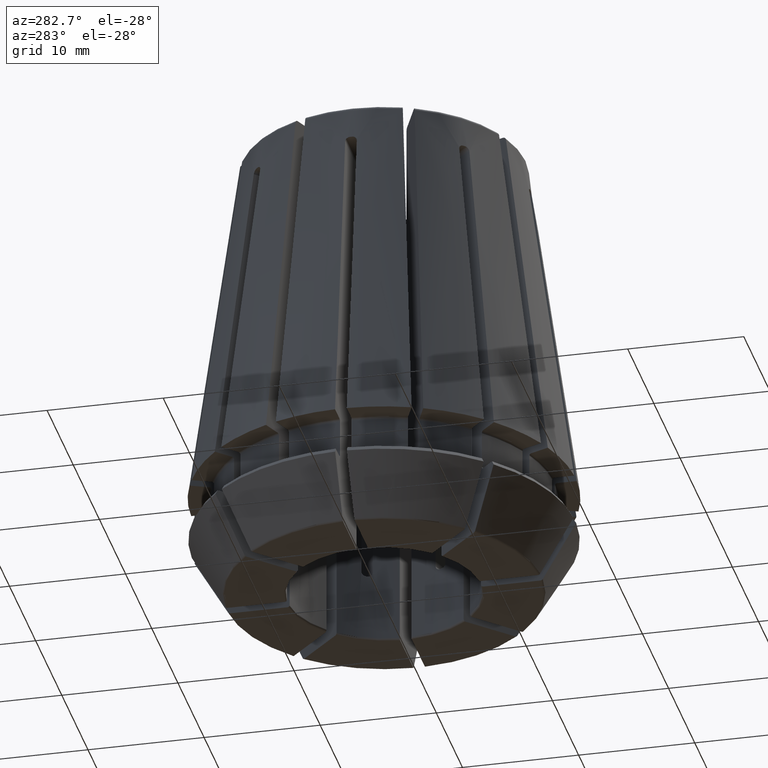
[diagram: clean part render]
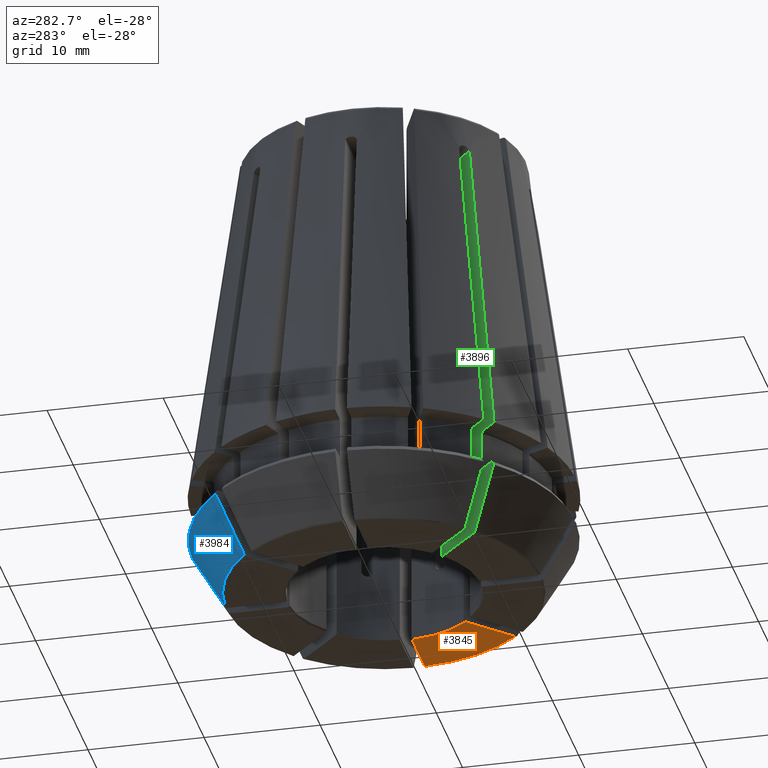
[diagram: same view with three faces highlighted in distinct colors, each labeled with its STEP entity id]
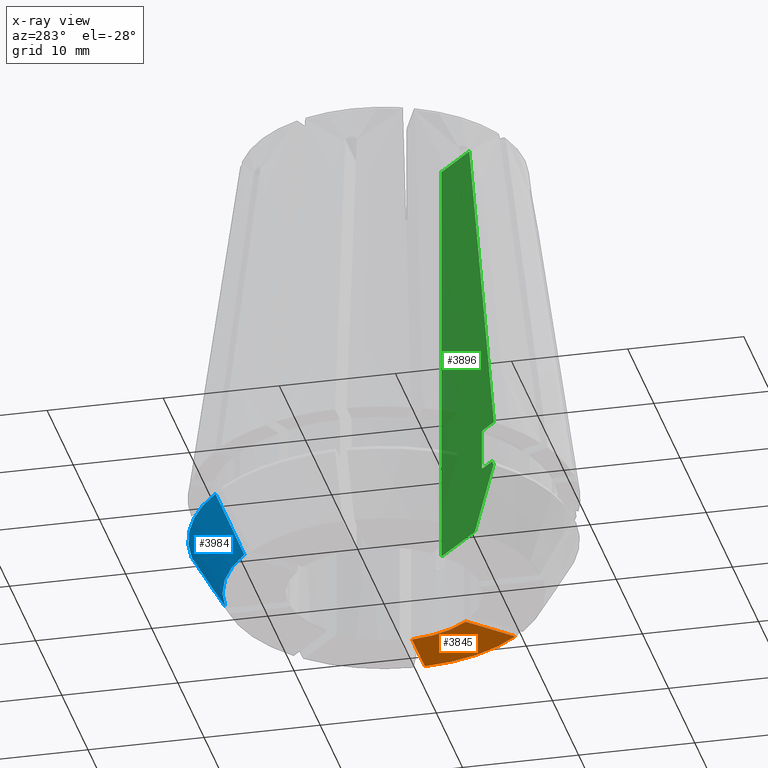
[diagram: x-ray of the same camera — body ghosted, the three highlighted faces saturated]
A machine part, auxiliary view with three faces highlighted in distinct colors.
The next image is the same camera in x-ray (body ghosted, the three faces saturated) — at least one of them is partly hidden behind the body in this view.
Their STEP definitions:

[orange] entity #3845 — the highlighted planar face has unit normal (0, 0, -1).
#149=LINE('',#6143,#373);
#150=LINE('',#6147,#374);
#373=VECTOR('',#4790,1000.);
#374=VECTOR('',#4793,1000.);
#551=PLANE('',#4163);
#717=CIRCLE('',#4164,13.3552359521597);
#718=CIRCLE('',#4165,8.45);
#1089=ORIENTED_EDGE('',*,*,#2293,.F.);
#1090=ORIENTED_EDGE('',*,*,#2294,.T.);
#1091=ORIENTED_EDGE('',*,*,#2295,.F.);
#1092=ORIENTED_EDGE('',*,*,#2296,.F.);
#2293=EDGE_CURVE('',#2873,#2874,#717,.T.);
#2294=EDGE_CURVE('',#2873,#2875,#149,.T.);
#2295=EDGE_CURVE('',#2876,#2875,#718,.T.);
#2296=EDGE_CURVE('',#2874,#2876,#150,.T.);
#2873=VERTEX_POINT('',#6141);
#2874=VERTEX_POINT('',#6142);
#2875=VERTEX_POINT('',#6144);
#2876=VERTEX_POINT('',#6146);
#3369=EDGE_LOOP('',(#1089,#1090,#1091,#1092));
#3579=FACE_BOUND('',#3369,.T.);
#3845=ADVANCED_FACE('',(#3579),#551,.T.);
#4163=AXIS2_PLACEMENT_3D('',#6139,#4786,#4787);
#4164=AXIS2_PLACEMENT_3D('',#6140,#4788,#4789);
#4165=AXIS2_PLACEMENT_3D('',#6145,#4791,#4792);
#4786=DIRECTION('',(0.,0.,-1.));
#4787=DIRECTION('',(-1.,0.,0.));
#4788=DIRECTION('',(0.,0.,1.));
#4789=DIRECTION('',(1.,0.,0.));
#4790=DIRECTION('',(-0.707106781186548,0.707106781186548,0.));
#4791=DIRECTION('',(0.,0.,-1.));
#4792=DIRECTION('',(-1.,0.,0.));
#4793=DIRECTION('',(-1.,1.60812264967663E-16,0.));
#6139=CARTESIAN_POINT('',(0.,13.3552359521597,0.2));
#6140=CARTESIAN_POINT('',(0.,0.,0.200000000000006));
#6141=CARTESIAN_POINT('',(9.79051072168942,-9.08340394050287,0.200000000000003));
#6142=CARTESIAN_POINT('',(13.3458730451724,-0.500000000000002,0.200000000000003));
#6143=CARTESIAN_POINT('',(-6.32406458548656,7.03117136667311,0.2));
#6144=CARTESIAN_POINT('',(6.31813636008905,-5.6110295789025,0.200000000000003));
#6145=CARTESIAN_POINT('',(0.,0.,0.2));
#6146=CARTESIAN_POINT('',(8.43519412936063,-0.500000000000001,0.200000000000003));
#6147=CARTESIAN_POINT('',(-2.2280918751282E-15,-0.5,0.2));

[blue] entity #3984 — the highlighted conical surface has half-angle 30 deg.
#42=CONICAL_SURFACE('',#4398,16.4464101615138,0.523598775598298);
#766=CIRCLE('',#4242,16.4464101615138);
#773=CIRCLE('',#4253,60602.3603996183);
#793=CIRCLE('',#4299,60602.3608670768);
#811=CIRCLE('',#4377,13.5717423031058);
#1903=ORIENTED_EDGE('',*,*,#2530,.F.);
#1904=ORIENTED_EDGE('',*,*,#2404,.F.);
#1905=ORIENTED_EDGE('',*,*,#2422,.T.);
#1906=ORIENTED_EDGE('',*,*,#2656,.T.);
#2404=EDGE_CURVE('',#2964,#2963,#766,.T.);
#2422=EDGE_CURVE('',#2964,#2981,#773,.T.);
#2530=EDGE_CURVE('',#2963,#3055,#793,.T.);
#2656=EDGE_CURVE('',#2981,#3055,#811,.T.);
#2963=VERTEX_POINT('',#6441);
#2964=VERTEX_POINT('',#6443);
#2981=VERTEX_POINT('',#6509);
#3055=VERTEX_POINT('',#6823);
#3508=EDGE_LOOP('',(#1903,#1904,#1905,#1906));
#3718=FACE_BOUND('',#3508,.T.);
#3984=ADVANCED_FACE('',(#3718),#42,.T.);
#4242=AXIS2_PLACEMENT_3D('',#6444,#4982,#4983);
#4253=AXIS2_PLACEMENT_3D('',#6510,#5008,#5009);
#4299=AXIS2_PLACEMENT_3D('',#6822,#5164,#5165);
#4377=AXIS2_PLACEMENT_3D('',#7307,#5357,#5358);
#4398=AXIS2_PLACEMENT_3D('',#7376,#5413,#5414);
#4982=DIRECTION('',(0.,0.,1.));
#4983=DIRECTION('',(1.,0.,0.));
#5008=DIRECTION('',(-1.,0.,0.));
#5009=DIRECTION('',(0.,0.865927774042361,-0.50016906156023));
#5164=DIRECTION('',(-0.707106781192398,-0.707106781180697,-4.68038147526125E-12));
#5165=DIRECTION('',(-0.61230340103626,0.612303401049702,-0.500169061560585));
#5357=DIRECTION('',(0.,0.,1.));
#5358=DIRECTION('',(1.,0.,0.));
#5413=DIRECTION('',(0.,0.,1.));
#5414=DIRECTION('',(1.,0.,0.));
#6441=CARTESIAN_POINT('',(-11.2704391937287,11.9775459749152,5.30407078564789));
#6443=CARTESIAN_POINT('',(-0.5,16.4388079616724,5.30407078564789));
#6444=CARTESIAN_POINT('',(0.,0.,5.30407078564789));
#6509=CARTESIAN_POINT('',(-0.5,13.5625288623439,0.325000000000002));
#6510=CARTESIAN_POINT('',(-0.5,-52460.8282345928,30316.7298001976));
#6822=CARTESIAN_POINT('',(37095.7612305442,-37095.0541245776,30316.7300340274));
#6823=CARTESIAN_POINT('',(-9.23660273800838,9.94370951919492,0.324999999999999));
#7307=CARTESIAN_POINT('',(0.,0.,0.325000000000006));
#7376=CARTESIAN_POINT('',(0.,0.,5.30407078564789));

[green] entity #3896 — the highlighted planar face has unit normal (-0.7071, 0.7071, 0).
#115=LINE('',#5843,#339);
#117=LINE('',#5849,#341);
#119=LINE('',#5870,#343);
#123=LINE('',#5894,#347);
#125=LINE('',#5900,#349);
#233=LINE('',#6728,#457);
#234=LINE('',#6730,#458);
#339=VECTOR('',#4616,1000.);
#341=VECTOR('',#4622,1000.);
#343=VECTOR('',#4634,1000.);
#347=VECTOR('',#4646,1000.);
#349=VECTOR('',#4652,1000.);
#457=VECTOR('',#5114,1000.);
#458=VECTOR('',#5115,1000.);
#581=PLANE('',#4284);
#684=CIRCLE('',#4110,60602.3608414495);
#1370=ORIENTED_EDGE('',*,*,#2495,.T.);
#1371=ORIENTED_EDGE('',*,*,#2496,.T.);
#1372=ORIENTED_EDGE('',*,*,#2497,.F.);
#1373=ORIENTED_EDGE('',*,*,#2498,.F.);
#1374=ORIENTED_EDGE('',*,*,#2208,.F.);
#1375=ORIENTED_EDGE('',*,*,#2217,.F.);
#1376=ORIENTED_EDGE('',*,*,#2214,.F.);
#1377=ORIENTED_EDGE('',*,*,#2211,.F.);
#1378=ORIENTED_EDGE('',*,*,#2192,.T.);
#1379=ORIENTED_EDGE('',*,*,#2196,.T.);
#1380=ORIENTED_EDGE('',*,*,#2199,.T.);
#1381=ORIENTED_EDGE('',*,*,#2185,.T.);
#1382=ORIENTED_EDGE('',*,*,#2189,.T.);
#2185=EDGE_CURVE('',#2787,#2788,#3143,.T.);
#2189=EDGE_CURVE('',#2788,#2791,#115,.T.);
#2192=EDGE_CURVE('',#2793,#2794,#117,.T.);
#2196=EDGE_CURVE('',#2794,#2797,#3145,.T.);
#2199=EDGE_CURVE('',#2797,#2787,#119,.T.);
#2208=EDGE_CURVE('',#2805,#2807,#123,.T.);
#2211=EDGE_CURVE('',#2793,#2809,#125,.T.);
#2214=EDGE_CURVE('',#2809,#2811,#684,.T.);
#2217=EDGE_CURVE('',#2811,#2805,#3149,.T.);
#2495=EDGE_CURVE('',#2791,#3029,#3221,.T.);
#2496=EDGE_CURVE('',#3029,#3030,#233,.T.);
#2497=EDGE_CURVE('',#3031,#3030,#234,.T.);
#2498=EDGE_CURVE('',#2807,#3031,#3222,.T.);
#2787=VERTEX_POINT('',#5832);
#2788=VERTEX_POINT('',#5833);
#2791=VERTEX_POINT('',#5844);
#2793=VERTEX_POINT('',#5850);
#2794=VERTEX_POINT('',#5851);
#2797=VERTEX_POINT('',#5862);
#2805=VERTEX_POINT('',#5892);
#2807=VERTEX_POINT('',#5895);
#2809=VERTEX_POINT('',#5901);
#2811=VERTEX_POINT('',#5907);
#3029=VERTEX_POINT('',#6727);
#3030=VERTEX_POINT('',#6729);
#3031=VERTEX_POINT('',#6731);
#3143=B_SPLINE_CURVE_WITH_KNOTS('',3,(#5828,#5829,#5830,#5831),
 .UNSPECIFIED.,.F.,.F.,(4,4),(0.,0.000312522060362306),.UNSPECIFIED.);
#3145=B_SPLINE_CURVE_WITH_KNOTS('',3,(#5858,#5859,#5860,#5861),
 .UNSPECIFIED.,.F.,.F.,(4,4),(7.56148432677051E-18,0.00031252218647989),
 .UNSPECIFIED.);
#3149=B_SPLINE_CURVE_WITH_KNOTS('',3,(#5912,#5913,#5914,#5915),
 .UNSPECIFIED.,.F.,.F.,(4,4),(5.30785325229634E-16,0.000260881061691445),
 .UNSPECIFIED.);
#3221=B_SPLINE_CURVE_WITH_KNOTS('',3,(#6723,#6724,#6725,#6726),
 .UNSPECIFIED.,.F.,.F.,(4,4),(2.01967312199597E-7,0.0277707831092404),
 .UNSPECIFIED.);
#3222=B_SPLINE_CURVE_WITH_KNOTS('',3,(#6732,#6733,#6734,#6735),
 .UNSPECIFIED.,.F.,.F.,(4,4),(1.1820278000622E-16,0.000312711929800136),
 .UNSPECIFIED.);
#3420=EDGE_LOOP('',(#1370,#1371,#1372,#1373,#1374,#1375,#1376,#1377,#1378,
#1379,#1380,#1381,#1382));
#3630=FACE_BOUND('',#3420,.T.);
#3896=ADVANCED_FACE('',(#3630),#581,.T.);
#4110=AXIS2_PLACEMENT_3D('',#5906,#4658,#4659);
#4284=AXIS2_PLACEMENT_3D('',#6722,#5112,#5113);
#4616=DIRECTION('',(-0.707106781186547,-0.707106781186548,-1.59408975653915E-18));
#4622=DIRECTION('',(0.707106781186547,0.707106781186548,1.59408975653915E-18));
#4634=DIRECTION('',(-2.25438335333768E-18,0.,1.));
#4646=DIRECTION('',(0.707106781186547,0.707106781186548,0.));
#4652=DIRECTION('',(-0.353677725120654,-0.353677725120437,-0.865923861264437));
#4658=DIRECTION('',(0.707106781382538,-0.707106780990557,1.60303065595208E-10));
#4659=DIRECTION('',(-0.612303400816581,-0.612303401269398,-0.500169061560565));
#5112=DIRECTION('',(-0.707106781186548,0.707106781186547,0.));
#5113=DIRECTION('',(0.707106781186547,0.707106781186548,0.));
#5114=DIRECTION('',(0.707106781186547,0.707106781186548,0.));
#5115=DIRECTION('',(0.,0.,1.));
#5828=CARTESIAN_POINT('',(-9.96414984220034,-10.6712566233869,9.1));
#5829=CARTESIAN_POINT('',(-9.96414984220034,-10.6712566233869,9.20567426849908));
#5830=CARTESIAN_POINT('',(-10.0309313061142,-10.7380380873007,9.30000000000101));
#5831=CARTESIAN_POINT('',(-10.105653080263,-10.8127598614495,9.30000000000097));
#5832=CARTESIAN_POINT('',(-9.96414984220035,-10.6712566233869,9.1));
#5833=CARTESIAN_POINT('',(-10.105653080263,-10.8127598614496,9.3));
#5843=CARTESIAN_POINT('',(7.75355339059327,7.04644660940673,9.3));
#5844=CARTESIAN_POINT('',(-11.3083503990973,-12.0154571802839,9.3));
#5849=CARTESIAN_POINT('',(8.63808333675534,7.9309765555688,5.7));
#5850=CARTESIAN_POINT('',(-11.1087259645351,-11.8158327457217,5.7));
#5851=CARTESIAN_POINT('',(-10.1056530802629,-10.8127598614495,5.7));
#5858=CARTESIAN_POINT('',(-10.1056530802629,-10.8127598614495,5.7));
#5859=CARTESIAN_POINT('',(-10.0309305503009,-10.7380373314875,5.69999999999999));
#5860=CARTESIAN_POINT('',(-9.96414984219977,-10.6712566233863,5.79432466738721));
#5861=CARTESIAN_POINT('',(-9.9641498421997,-10.6712566233863,5.8999999999998));
#5862=CARTESIAN_POINT('',(-9.96414984220035,-10.6712566233869,5.9));
#5870=CARTESIAN_POINT('',(-9.96414984220035,-10.6712566233869,34.));
#5892=CARTESIAN_POINT('',(-9.08340394050287,-9.79051072168943,0.200000000000003));
#5894=CARTESIAN_POINT('',(7.03117136667311,6.32406458548657,0.2));
#5895=CARTESIAN_POINT('',(-5.61102957890249,-6.31813636008905,0.2));
#5900=CARTESIAN_POINT('',(-11.1895825791319,-11.8966893603185,5.50203539282395));
#5901=CARTESIAN_POINT('',(-11.2704391937287,-11.9775459749152,5.30407078564789));
#5906=CARTESIAN_POINT('',(37095.7612015394,37095.0541222,30316.7300212082));
#5907=CARTESIAN_POINT('',(-9.23660273801106,-9.94370951919329,0.325000000000068));
#5912=CARTESIAN_POINT('',(-9.23660273800837,-9.94370951919493,0.324999999999991));
#5913=CARTESIAN_POINT('',(-9.20539879380627,-9.91250557499282,0.248618147271801));
#5914=CARTESIAN_POINT('',(-9.14577906481972,-9.85288584600628,0.199999999999988));
#5915=CARTESIAN_POINT('',(-9.08340394050286,-9.79051072168941,0.2));
#6722=CARTESIAN_POINT('',(0.353553390593271,-0.353553390593273,-36.7376156317235));
#6723=CARTESIAN_POINT('',(-11.3083503990973,-12.0154571802839,9.3));
#6724=CARTESIAN_POINT('',(-10.3969700797826,-11.1040768609691,18.4666916569642));
#6725=CARTESIAN_POINT('',(-9.48550258403434,-10.1926093652209,27.6333659833111));
#6726=CARTESIAN_POINT('',(-8.5738324378724,-9.28093921905896,36.8));
#6727=CARTESIAN_POINT('',(-8.57383243787239,-9.28093921905895,36.8));
#6728=CARTESIAN_POINT('',(-5.46935395883279,-6.17646074001934,36.8));
#6729=CARTESIAN_POINT('',(-5.46935395883279,-6.17646074001934,36.8));
#6730=CARTESIAN_POINT('',(-5.46935395883279,-6.17646074001934,-57.));
#6731=CARTESIAN_POINT('',(-5.46935395883248,-6.17646074001903,0.399999999999909));
#6732=CARTESIAN_POINT('',(-5.61102957890241,-6.31813636008896,0.200000000000005));
#6733=CARTESIAN_POINT('',(-5.53626214206021,-6.24336892324677,0.200000000000131));
#6734=CARTESIAN_POINT('',(-5.46935395883225,-6.1764607400188,0.294257555188619));
#6735=CARTESIAN_POINT('',(-5.46935395883217,-6.17646074001873,0.399999999999813));